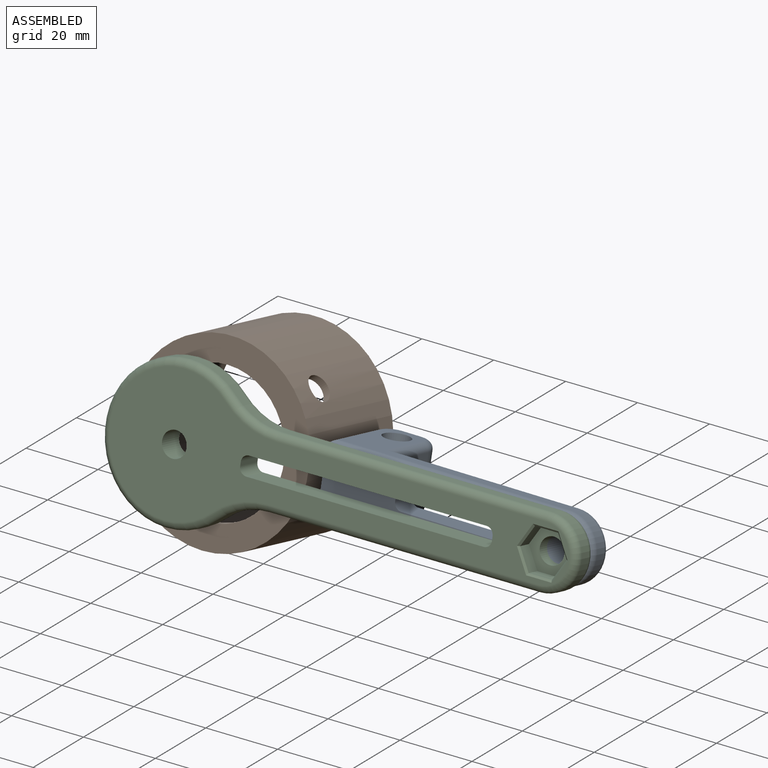
[diagram: assembled view]
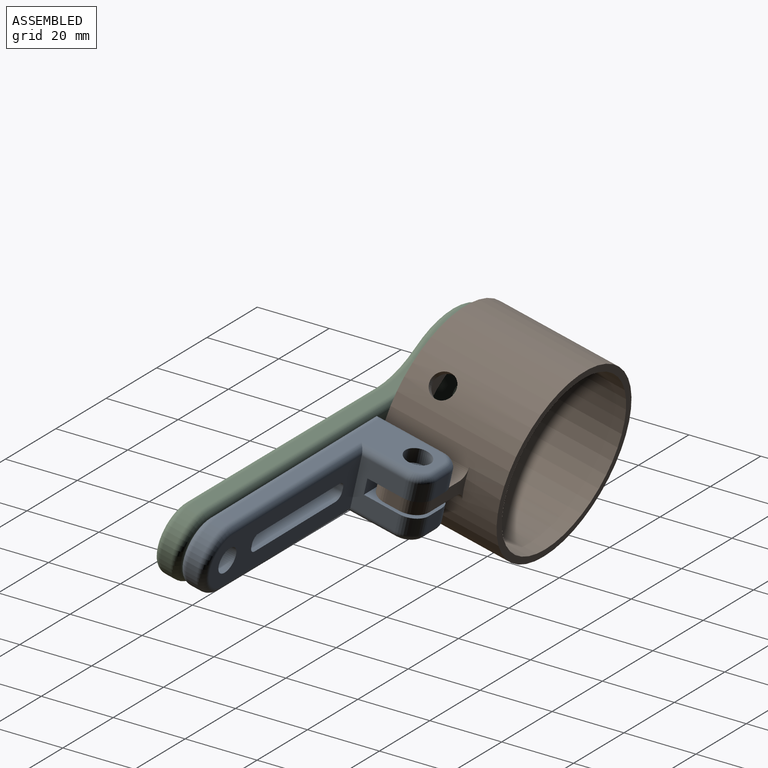
[diagram: assembled view, second angle]
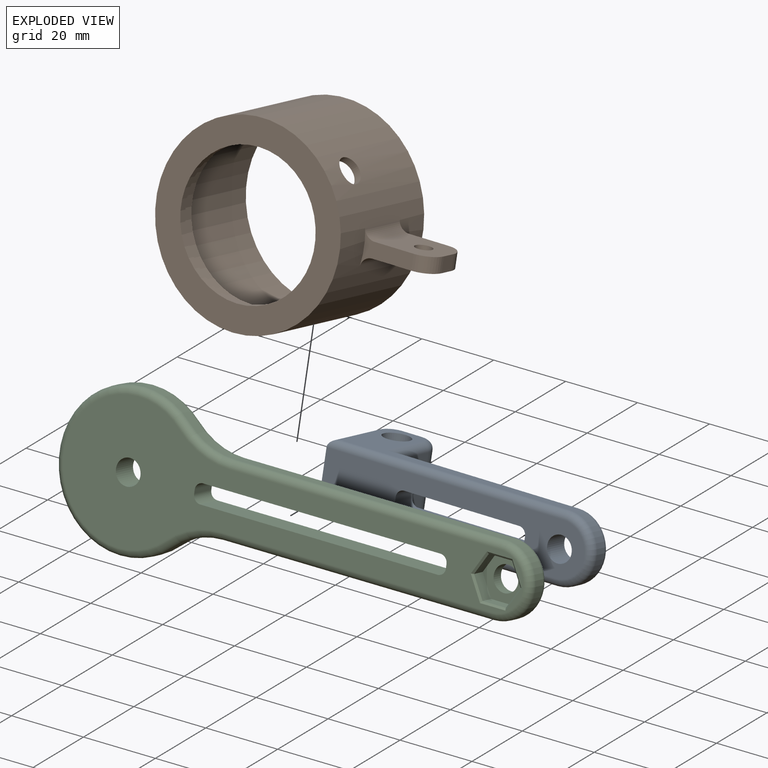
[diagram: exploded view]
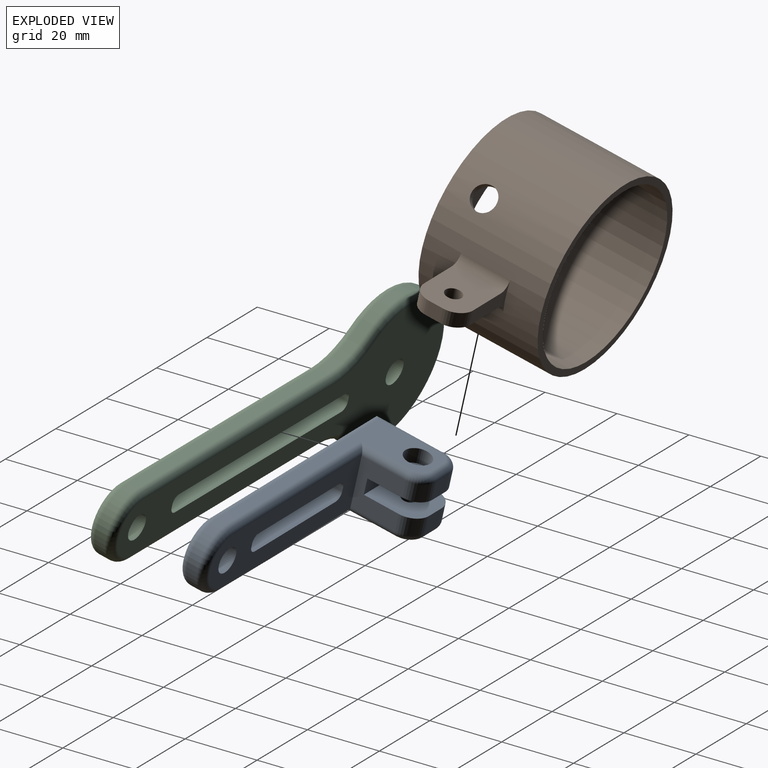
[diagram: exploded view, second angle]
ASSEMBLY  parts=3 mates=2
PART A: 52 faces, bbox 76.2x19.5x25.1 mm
  f0: plane 58x14mm, normal (0,0,1), area 578.1mm2, adj f5,f18,f29,f31,f33,f44,f45,f46
  f1: plane 73x14mm, normal (0,0,-1), area 788.1mm2, adj f9,f18,f38,f40,f42,f44,f45,f46
  f2: cylinder r=2mm len=4mm, axis (0,-1,0), area 34.6mm2, adj f11,f21
  f3: cylinder r=2mm len=4mm, axis (0,-1,0), area 34.6mm2, adj f12,f20
  f4: plane 5x4.75mm, normal (0,0,1), area 23.8mm2, adj f12,f14,f15,f32
  f5: plane 14x12.7mm, normal (1,0,0), area 132.8mm2, adj f0,f11,f12,f13,f15,f17,f28,f35
  f6: plane 64x20.7mm, normal (0,-1,0), area 343.2mm2, adj f7,f19,f28,f29,f30,f32,f34,f36
  f7: cylinder r=9mm len=18mm, axis (0,0,-1), area 84.8mm2, adj f6,f8,f31,f40
  f8: plane 64x20.7mm, normal (0,1,0), area 327.4mm2, adj f7,f22,f23,f24,f25,f26,f27,f33
  f9: plane 19.7x14mm, normal (-1,0,0), area 230.8mm2, adj f1,f11,f12,f13,f14,f16,f36,f43
  f10: plane 5x4.75mm, normal (0,0,1), area 23.8mm2, adj f11,f16,f17,f39
  f11: plane 15x15mm, normal (0,-1,0), area 201.7mm2, adj f2,f5,f9,f10,f13,f16,f17
  f12: plane 15x15mm, normal (0,1,0), area 201.7mm2, adj f3,f4,f5,f9,f13,f14,f15
  f13: plane 15x4.5mm, normal (0,0,1), area 67.5mm2, adj f5,f9,f11,f12
  f14: cylinder r=5mm len=5mm, axis (0,1,0), area 37.3mm2, adj f4,f9,f12,f34
  f15: cylinder r=5mm len=5mm, axis (0,-1,0), area 37.3mm2, adj f4,f5,f12,f30
  f16: cylinder r=5mm len=5mm, axis (0,1,0), area 37.3mm2, adj f9,f10,f11,f41
  f17: cylinder r=5mm len=5mm, axis (0,-1,0), area 37.3mm2, adj f5,f10,f11,f37
  f18: cylinder r=3.4mm len=7mm, axis (0,0,1), area 149.5mm2, adj f0,f1
  f19: cylinder r=3.55mm len=7.1mm, axis (0,-1,0), area 89.2mm2, adj f6,f20
  f20: plane 7.1x7.1mm, normal (0,-1,0), area 27mm2, adj f3,f19
  f21: plane 9.24x8mm, normal (0,1,0), area 42.9mm2, adj f2,f22,f23,f24,f25,f26,f27
  f22: plane 4x4mm, normal (0.87,0,0.5), area 18.5mm2, adj f8,f21,f23,f27
  f23: plane 4x4mm, normal (0.87,0,-0.5), area 18.5mm2, adj f8,f21,f22,f24
  f24: plane 4.62x4mm, normal (0,0,-1), area 18.5mm2, adj f8,f21,f23,f25
  f25: plane 4x4mm, normal (-0.87,0,-0.5), area 18.5mm2, adj f8,f21,f24,f26
  f26: plane 4x4mm, normal (-0.87,0,0.5), area 18.5mm2, adj f8,f21,f25,f27
  f27: plane 4.62x4mm, normal (0,0,1), area 18.5mm2, adj f8,f21,f22,f26
  f28: cylinder r=2mm len=14.7mm, axis (0,0,-1), area 42.2mm2, adj f5,f6,f29,f30
  f29: cylinder r=2mm len=53mm, axis (-1,0,0), area 162.5mm2, adj f0,f6,f28,f31
  f30: torus R=3mm, axis (0,-1,0), area 21.1mm2, adj f6,f15,f28,f32
  f31: torus R=7mm, axis (0,0,1), area 81.7mm2, adj f0,f7,f29,f33
  f32: cylinder r=2mm len=5mm, axis (-1,0,0), area 15.7mm2, adj f4,f6,f30,f34
  f33: cylinder r=2mm len=53mm, axis (1,0,0), area 162.5mm2, adj f0,f8,f31,f35
  f34: torus R=3mm, axis (0,-1,0), area 21.1mm2, adj f6,f14,f32,f36
  f35: cylinder r=2mm len=14.7mm, axis (0,0,1), area 42.2mm2, adj f5,f8,f33,f37
  f36: cylinder r=2mm len=19.7mm, axis (0,0,1), area 59.6mm2, adj f6,f9,f34,f38
  f37: torus R=3mm, axis (0,-1,0), area 21.1mm2, adj f8,f17,f35,f39
  f38: cylinder r=2mm len=66mm, axis (1,0,0), area 205.1mm2, adj f1,f6,f36,f40
  f39: cylinder r=2mm len=5mm, axis (1,0,0), area 15.7mm2, adj f8,f10,f37,f41
  f40: torus R=7mm, axis (0,0,1), area 81.7mm2, adj f1,f7,f38,f42
  f41: torus R=3mm, axis (0,-1,0), area 21.1mm2, adj f8,f16,f39,f43
  f42: cylinder r=2mm len=66mm, axis (-1,0,0), area 205.1mm2, adj f1,f8,f40,f43
  f43: cylinder r=2mm len=19.7mm, axis (0,0,-1), area 59.6mm2, adj f8,f9,f41,f42
  f44: plane 7x1mm, normal (-1,0,0), area 7mm2, adj f0,f1,f48,f51
  f45: plane 32x7mm, normal (0,-1,0), area 224mm2, adj f0,f1,f48,f49
  f46: plane 7x1mm, normal (1,0,0), area 7mm2, adj f0,f1,f49,f50
  f47: plane 32x7mm, normal (0,1,0), area 224mm2, adj f0,f1,f50,f51
  f48: cylinder r=2mm len=7mm, axis (0,0,1), area 22mm2, adj f0,f1,f44,f45
  f49: cylinder r=2mm len=7mm, axis (0,0,-1), area 22mm2, adj f0,f1,f45,f46
  f50: cylinder r=2mm len=7mm, axis (0,0,1), area 22mm2, adj f0,f1,f46,f47
  f51: cylinder r=2mm len=7mm, axis (0,0,-1), area 22mm2, adj f0,f1,f44,f47
PART B: 19 faces, bbox 51x69.5x34 mm
  f0: cylinder r=25.5mm len=51mm, axis (0,0,-1), area 5284.1mm2, adj f2,f3,f8,f10,f14,f17,f18
  f1: cylinder r=23.5mm len=47mm, axis (0,0,-1), area 4096.8mm2, adj f3,f4,f14
  f2: plane 51x51mm, normal (0,0,-1), area 956mm2, adj f0,f7
  f3: plane 51x51mm, normal (0,0,1), area 307.9mm2, adj f0,f1
  f4: plane 47x47mm, normal (0,0,1), area 528.1mm2, adj f1,f5
  f5: cylinder r=19.6mm len=39.2mm, axis (0,0,1), area 492.6mm2, adj f4,f6
  f6: plane 39.2x39.2mm, normal (0,0,1), area 120mm2, adj f5,f7
  f7: cylinder r=18.6mm len=37.2mm, axis (0,0,1), area 233.7mm2, adj f2,f6
  f8: plane 13.9x8.95mm, normal (0,0,-1), area 56.8mm2, adj f0,f9,f11,f16,f17,f18
  f9: plane 15.94x14mm, normal (1,0,0), area 196.6mm2, adj f8,f10,f12,f13,f15,f16,f18
  f10: plane 13.9x8.95mm, normal (0,0,1), area 56.8mm2, adj f0,f9,f11,f15,f17,f18
  f11: plane 15.94x14mm, normal (-1,0,0), area 196.6mm2, adj f8,f10,f12,f13,f15,f16,f17
  f12: plane 4x4mm, normal (0,-1,0), area 16mm2, adj f9,f11,f15,f16
  f13: cylinder r=2.25mm len=4.5mm, axis (1,0,0), area 56.5mm2, adj f9,f11
  f14: cylinder r=3.45mm len=6.9mm, axis (-0.66,-0.75,0), area 43.6mm2, adj f0,f1
  f15: cylinder r=5mm len=5mm, axis (-1,0,0), area 31.4mm2, adj f9,f10,f11,f12
  f16: cylinder r=5mm len=5mm, axis (1,0,0), area 31.4mm2, adj f8,f9,f11,f12
  f17: cylinder r=3mm len=14mm, axis (0,0,-1), area 58.6mm2, adj f0,f8,f10,f11
  f18: cylinder r=3mm len=14mm, axis (0,0,-1), area 58.6mm2, adj f0,f8,f9,f10
PART C: 43 faces, bbox 134.2x43.3x7 mm
  f0: plane 127.8x36mm, normal (0,0,1), area 1893.1mm2, adj f9,f17,f18,f19,f20,f21,f22,f23
  f1: plane 127.8x36mm, normal (0,0,-1), area 1985.7mm2, adj f2,f9,f29,f30,f31,f32,f33,f34
  f2: cylinder r=3.4mm len=6.8mm, axis (0,0,-1), area 64.1mm2, adj f1,f16
  f3: plane 75.29x3mm, normal (0,1,0), area 225.9mm2, adj f6,f7,f26,f33
  f4: cylinder r=20mm len=40mm, axis (0,0,-1), area 277.5mm2, adj f7,f8,f27,f32
  f5: plane 75.29x3mm, normal (0,-1,0), area 225.9mm2, adj f6,f8,f23,f29
  f6: cylinder r=9.5mm len=19mm, axis (0,0,-1), area 89.5mm2, adj f3,f5,f24,f31
  f7: cylinder r=20mm len=13.51mm, axis (0,0,-1), area 44.5mm2, adj f3,f4,f28,f34
  f8: cylinder r=20mm len=13.51mm, axis (0,0,-1), area 44.5mm2, adj f4,f5,f25,f30
  f9: cylinder r=3.4mm len=7mm, axis (0,0,-1), area 149.5mm2, adj f0,f1
  f10: plane 5.6x3.5mm, normal (-0.87,0.5,0), area 22.6mm2, adj f11,f15,f16,f20
  f11: plane 5.6x3.5mm, normal (-0.87,-0.5,0), area 22.6mm2, adj f10,f12,f16,f22
  f12: plane 6.47x3.5mm, normal (0,-1,0), area 22.6mm2, adj f11,f13,f16,f21
  f13: plane 5.6x3.5mm, normal (0.87,-0.5,0), area 22.6mm2, adj f12,f14,f16,f19
  f14: plane 5.6x3.5mm, normal (0.87,0.5,0), area 22.6mm2, adj f13,f15,f16,f17
  f15: plane 6.47x3.5mm, normal (0,1,0), area 22.6mm2, adj f10,f14,f16,f18
  f16: plane 12.93x11.2mm, normal (0,0,1), area 72.3mm2, adj f2,f10,f11,f12,f13,f14,f15
  f17: plane 6.1x3.81mm, normal (0.61,0.35,0.71), area 4.8mm2, adj f0,f14,f18,f19
  f18: plane 7.04x0.5mm, normal (0,0.71,0.71), area 4.8mm2, adj f0,f15,f17,f20
  f19: plane 6.1x3.81mm, normal (0.61,-0.35,0.71), area 4.8mm2, adj f0,f13,f17,f21
  f20: plane 6.1x3.81mm, normal (-0.61,0.35,0.71), area 4.8mm2, adj f0,f10,f18,f22
  f21: plane 7.04x0.5mm, normal (0,-0.71,0.71), area 4.8mm2, adj f0,f12,f19,f22
  f22: plane 6.1x3.81mm, normal (-0.61,-0.35,0.71), area 4.8mm2, adj f0,f11,f20,f21
  f23: cylinder r=2mm len=75.29mm, axis (-1,0,0), area 236.5mm2, adj f0,f5,f24,f25
  f24: torus R=7.5mm, axis (0,0,1), area 86.6mm2, adj f0,f6,f23,f26
  f25: torus R=22mm, axis (0,0,1), area 48.3mm2, adj f0,f8,f23,f27
  f26: cylinder r=2mm len=75.29mm, axis (1,0,0), area 236.5mm2, adj f0,f3,f24,f28
  f27: torus R=18mm, axis (0,0,1), area 280mm2, adj f0,f4,f25,f28
  f28: torus R=22mm, axis (0,0,1), area 48.3mm2, adj f0,f7,f26,f27
  f29: cylinder r=2mm len=75.29mm, axis (1,0,0), area 236.5mm2, adj f1,f5,f30,f31
  f30: torus R=22mm, axis (0,0,1), area 48.3mm2, adj f1,f8,f29,f32
  f31: torus R=7.5mm, axis (0,0,1), area 86.6mm2, adj f1,f6,f29,f33
  f32: torus R=18mm, axis (0,0,1), area 280mm2, adj f1,f4,f30,f34
  f33: cylinder r=2mm len=75.29mm, axis (-1,0,0), area 236.5mm2, adj f1,f3,f31,f34
  f34: torus R=22mm, axis (0,0,1), area 48.3mm2, adj f1,f7,f32,f33
  f35: plane 7x1mm, normal (-1,0,0), area 7mm2, adj f0,f1,f39,f42
  f36: plane 66x7mm, normal (0,-1,0), area 462mm2, adj f0,f1,f39,f40
  f37: plane 7x1mm, normal (1,0,0), area 7mm2, adj f0,f1,f40,f41
  f38: plane 66x7mm, normal (0,1,0), area 462mm2, adj f0,f1,f41,f42
  f39: cylinder r=2mm len=7mm, axis (0,0,1), area 22mm2, adj f0,f1,f35,f36
  f40: cylinder r=2mm len=7mm, axis (0,0,-1), area 22mm2, adj f0,f1,f36,f37
  f41: cylinder r=2mm len=7mm, axis (0,0,1), area 22mm2, adj f0,f1,f37,f38
  f42: cylinder r=2mm len=7mm, axis (0,0,-1), area 22mm2, adj f0,f1,f35,f38
PLACE A rot(axis=(-1,0,0),103.1deg) t=(-60.61,-34.34,-58.33)mm
PLACE B rot(axis=(-0.61,0.62,0.49),128deg) t=(-123.11,-33.97,-57.64)mm
PLACE C rot(axis=(1,0,0),76.9deg) t=(-74.76,-34.4,-58.59)mm
MATE revolute C.f2 <-> A.f18  axis (0,0.97,-0.23) through (-27.61,-34.4,-58.59)mm
MATE revolute B.f13 <-> A.f2  axis (0.01,0.23,0.97) through (-86.09,-17.03,-59.82)mm
